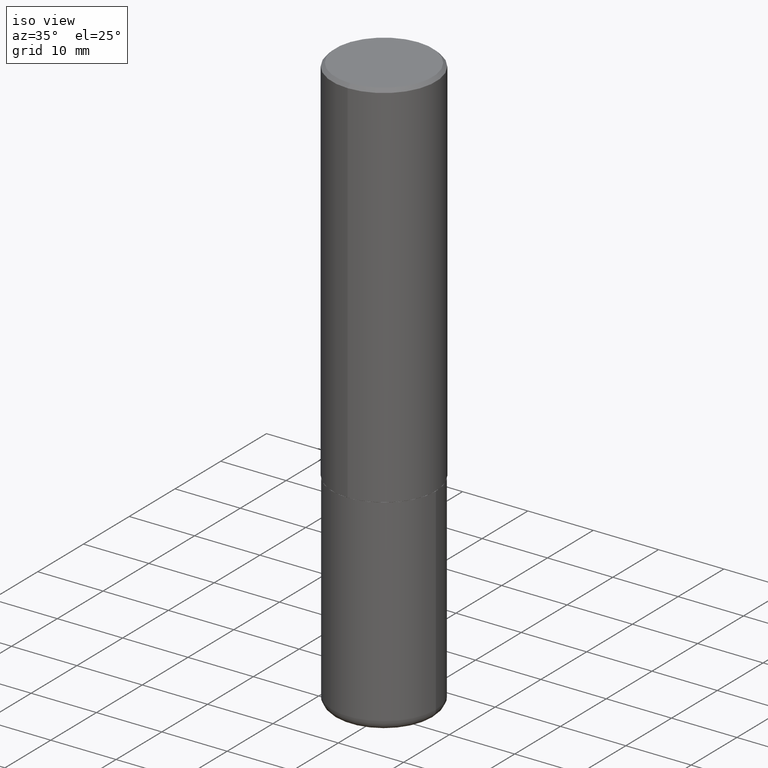
[diagram: clean part render]
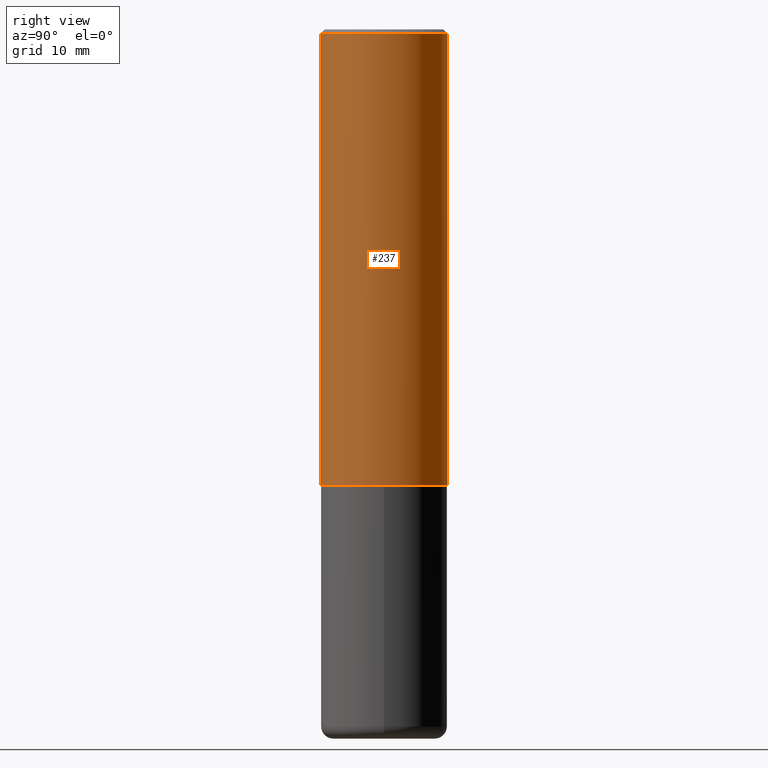
[diagram: tour spotlight — one face highlighted and labeled with its STEP entity id]
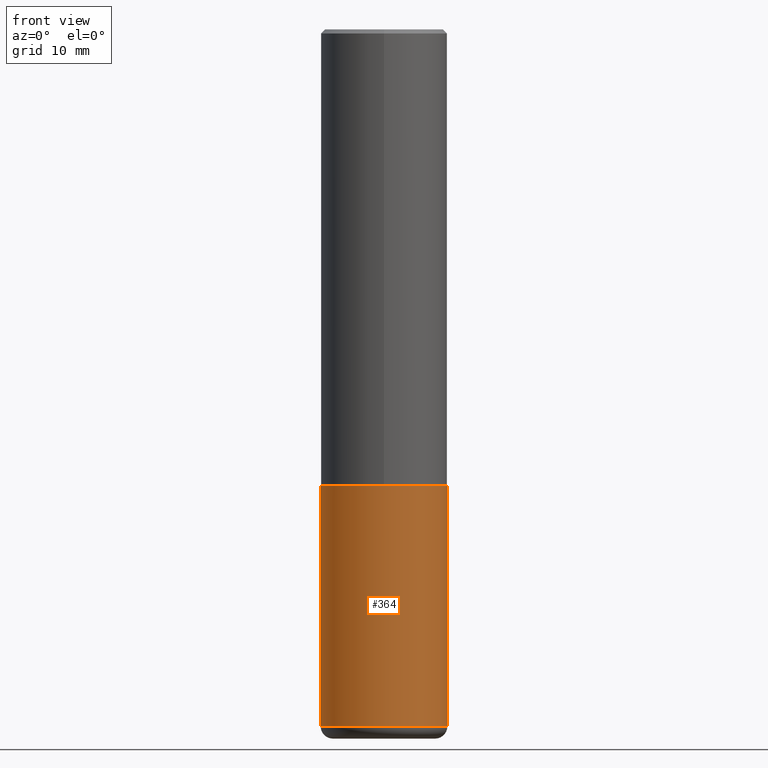
[diagram: tour spotlight — one face highlighted and labeled with its STEP entity id]
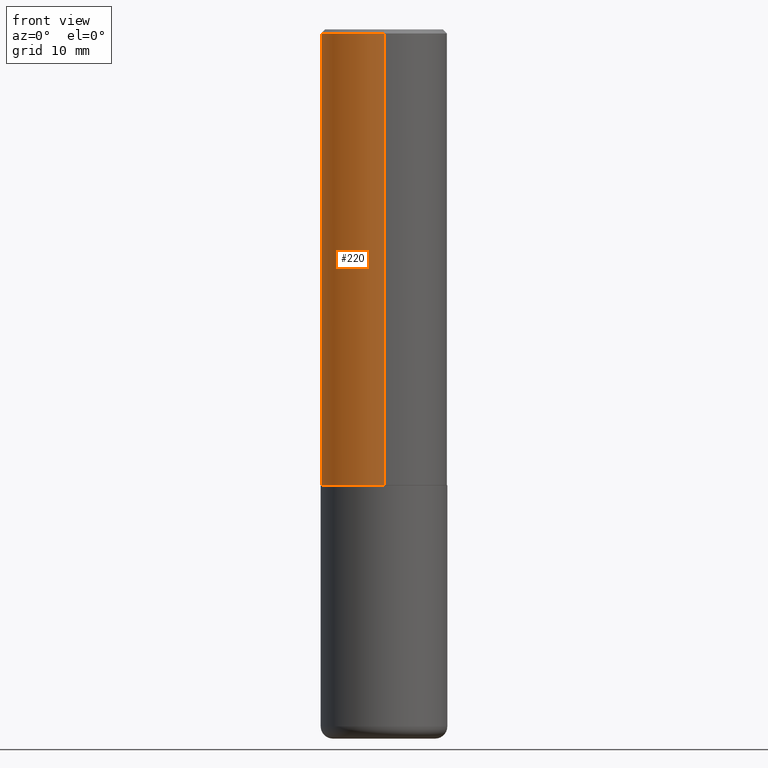
[diagram: tour spotlight — one face highlighted and labeled with its STEP entity id]
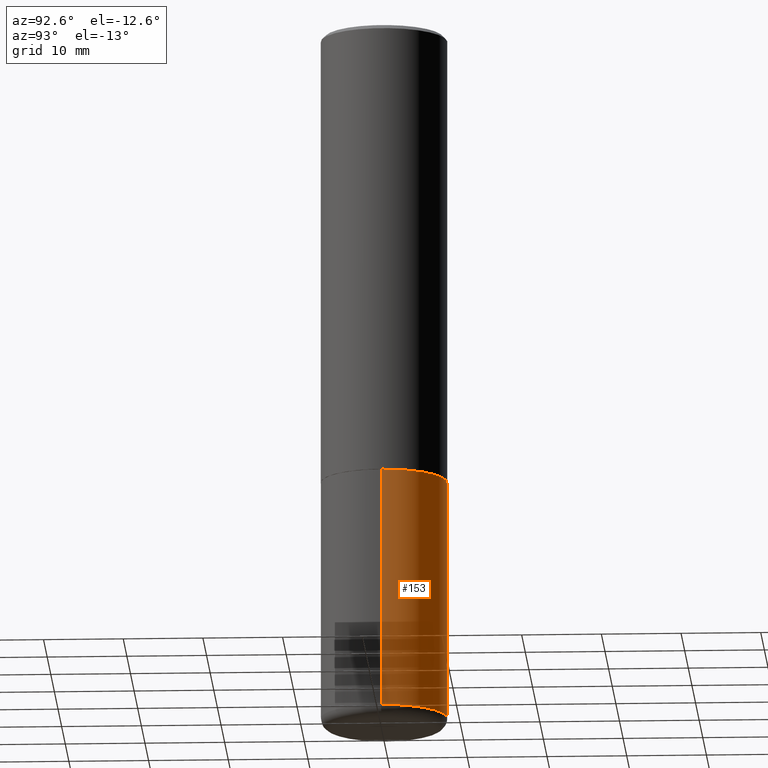
[diagram: tour spotlight — one face highlighted and labeled with its STEP entity id]
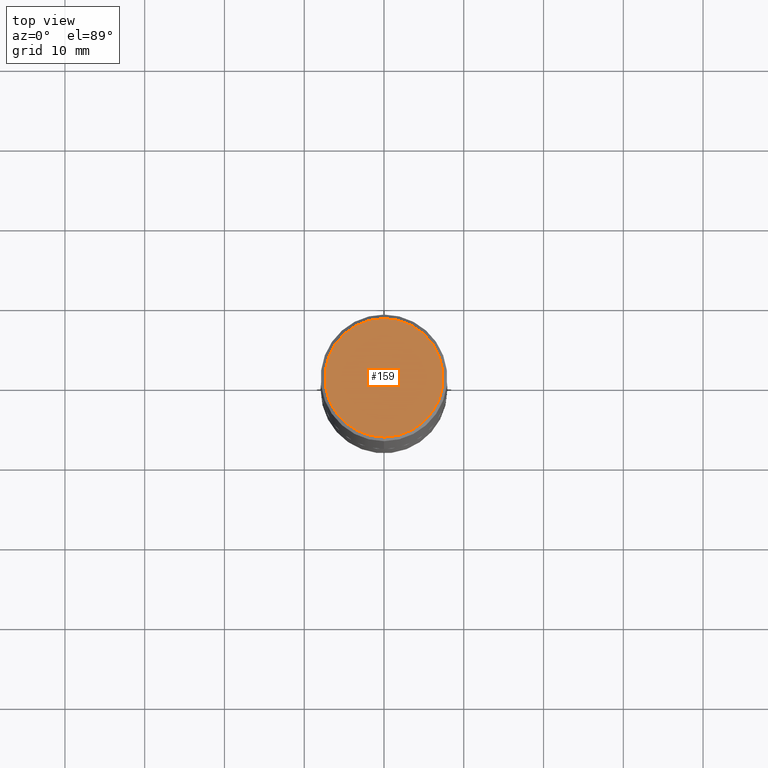
[diagram: tour spotlight — one face highlighted and labeled with its STEP entity id]
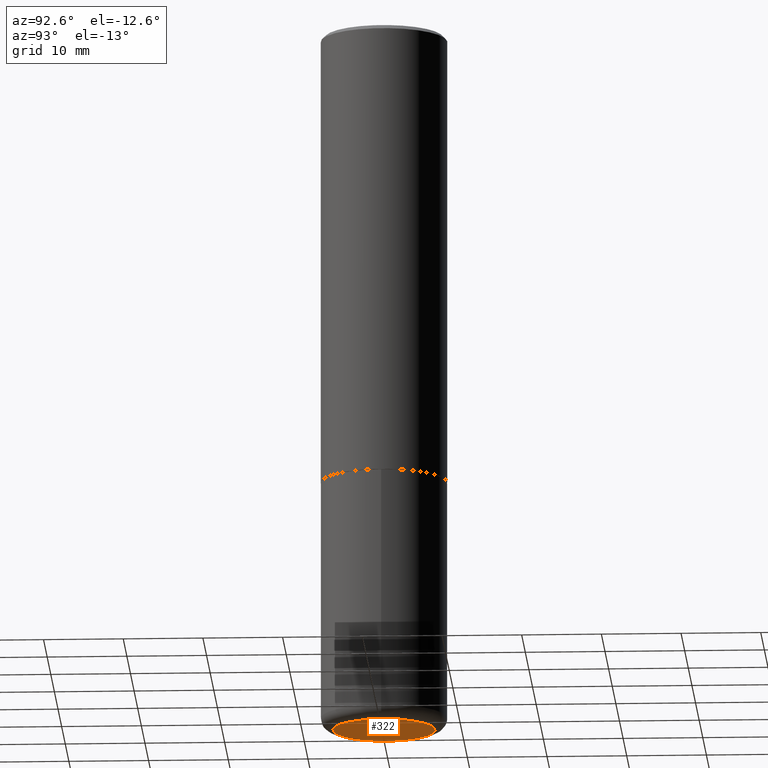
[diagram: tour spotlight — one face highlighted and labeled with its STEP entity id]
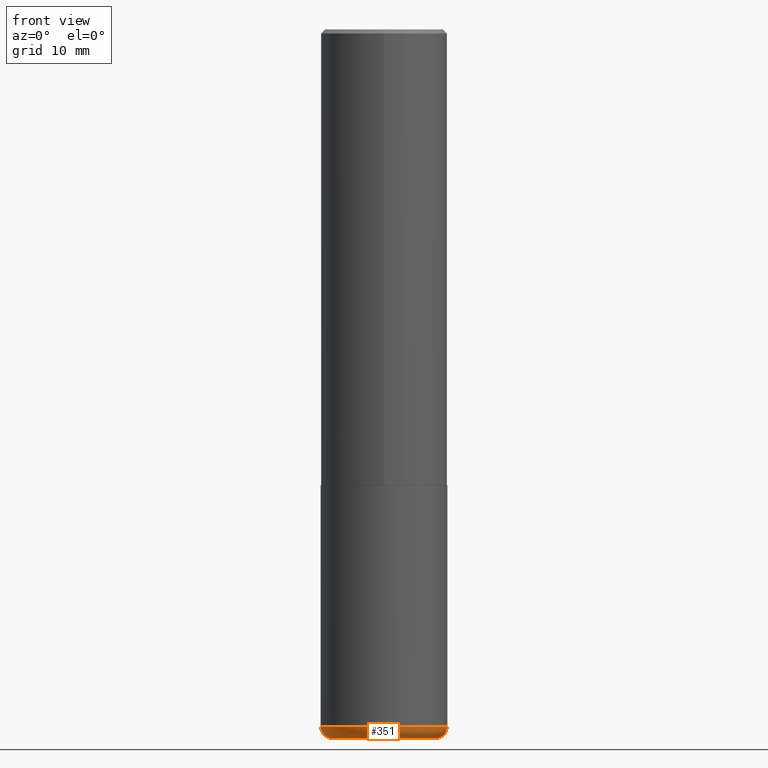
[diagram: tour spotlight — one face highlighted and labeled with its STEP entity id]
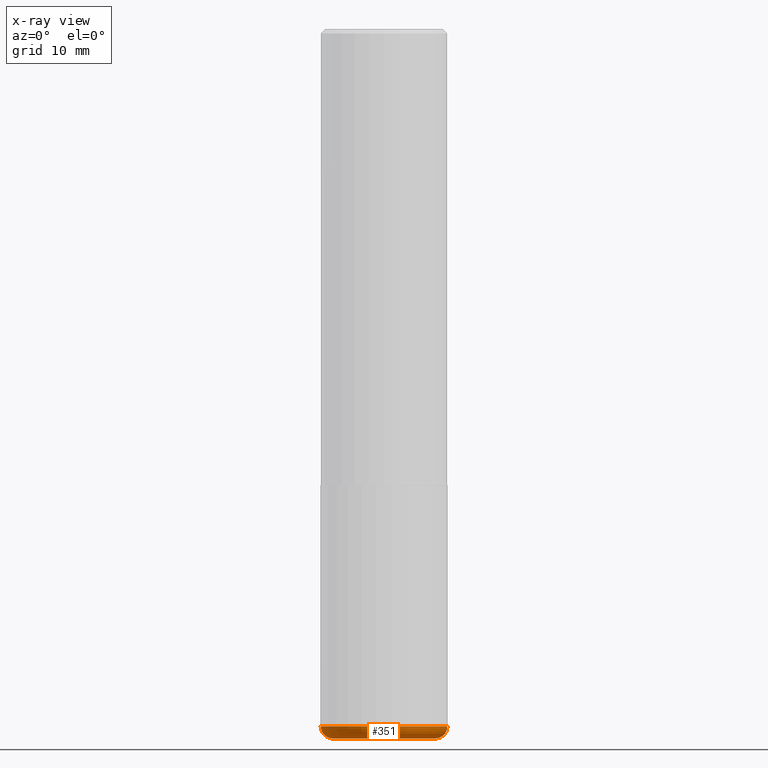
[diagram: x-ray of the same camera — body ghosted, this tour face saturated]
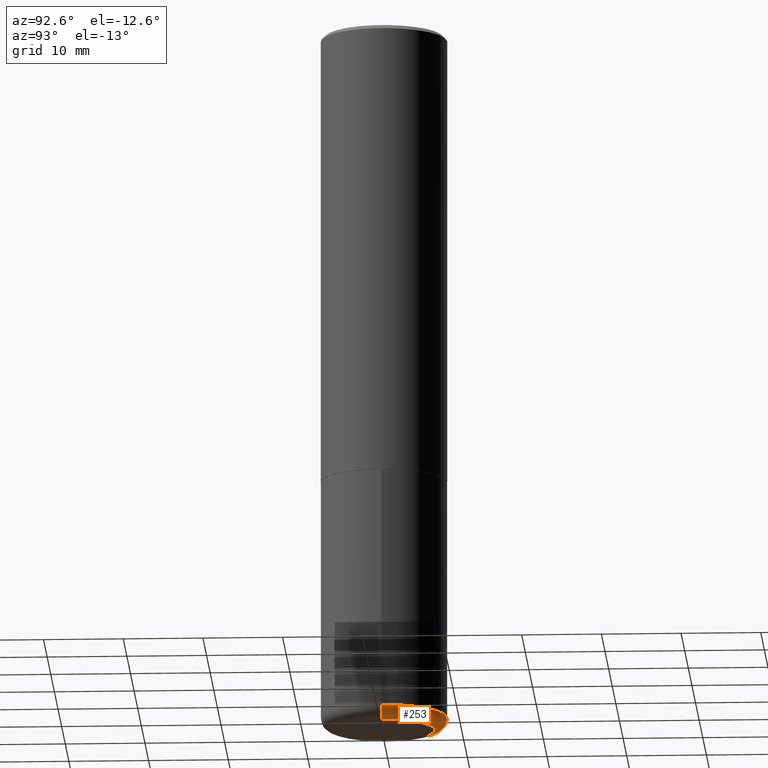
[diagram: tour spotlight — one face highlighted and labeled with its STEP entity id]
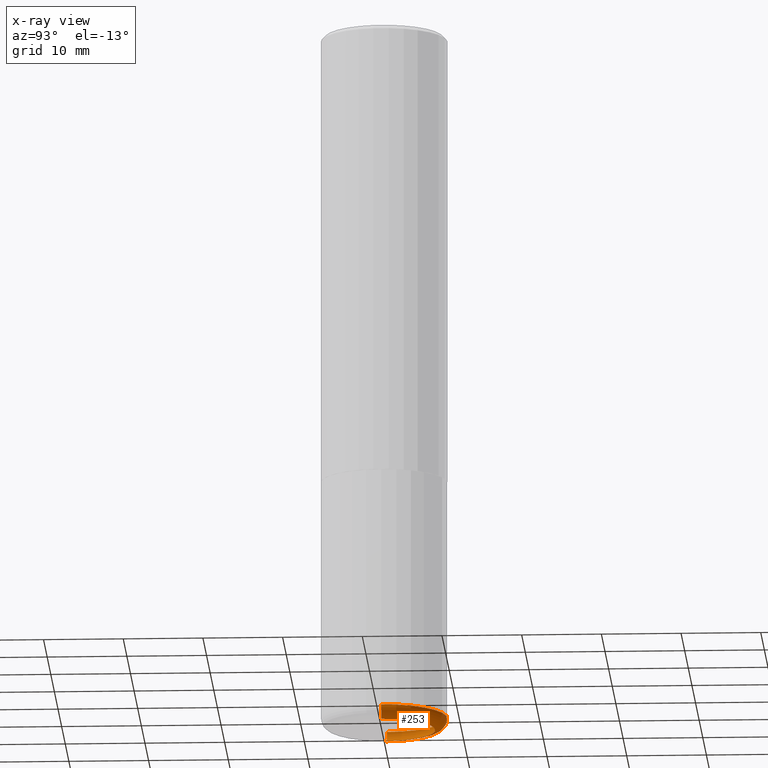
[diagram: x-ray of the same camera — body ghosted, this tour face saturated]
A machine part: a face-by-face anatomy tour. The part has 14 B-rep faces; the first image is the clean iso view, then the 8 largest visible faces are spotlighted one at a time (largest first), each with its STEP entity span.

Face 1 — right view, entity #237. In plain terms, the highlighted cylindrical surface (partial cylindrical patch) has radius 7.9375 mm, axis along (-0, 0, 1).
Definition (entity closure, byte-faithful):
#4 = DIRECTION ( 'NONE',  ( -6.982962677686265133E-15, -1.000000000000000000, 3.496765431890258103E-15 ) ) ;
#10 = CARTESIAN_POINT ( 'NONE',  ( 4.888310870337248995E-31, -6.986724321782500903E-17, -0.02000000000000006981 ) ) ;
#28 = CARTESIAN_POINT ( 'NONE',  ( 5.496905573694216767E-29, -7.856571499844395127E-15, -2.248999999999999666 ) ) ;
#36 = CARTESIAN_POINT ( 'NONE',  ( 2.220446049250341480E-15, 0.3124999999999924505, -2.249000000000000998 ) ) ;
#44 = ORIENTED_EDGE ( 'NONE', *, *, #326, .T. ) ;
#54 = VECTOR ( 'NONE', #337, 39.37007874015748143 ) ;
#64 = VECTOR ( 'NONE', #100, 39.37007874015748143 ) ;
#70 = DIRECTION ( 'NONE',  ( -6.982962677686266711E-15, -1.000000000000000000, 3.493362160891238520E-15 ) ) ;
#77 = EDGE_LOOP ( 'NONE', ( #44, #231, #257, #86 ) ) ;
#86 = ORIENTED_EDGE ( 'NONE', *, *, #308, .F. ) ;
#99 = FACE_OUTER_BOUND ( 'NONE', #77, .T. ) ;
#100 = DIRECTION ( 'NONE',  ( -2.444155435168616212E-29, 3.493362160891238126E-15, 1.000000000000000000 ) ) ;
#113 = VERTEX_POINT ( 'NONE', #401 ) ;
#127 = EDGE_CURVE ( 'NONE', #293, #210, #241, .T. ) ;
#137 = DIRECTION ( 'NONE',  ( -2.444155435168616212E-29, 3.493362160891238520E-15, 1.000000000000000000 ) ) ;
#191 = CYLINDRICAL_SURFACE ( 'NONE', #323, 0.3125000000000000555 ) ;
#192 = CIRCLE ( 'NONE', #305, 0.3124999999999998890 ) ;
#210 = VERTEX_POINT ( 'NONE', #287 ) ;
#211 = CARTESIAN_POINT ( 'NONE',  ( 2.220446049250313081E-15, 0.3125000000000000555, -1.091675675278512284E-15 ) ) ;
#231 = ORIENTED_EDGE ( 'NONE', *, *, #127, .T. ) ;
#237 = ADVANCED_FACE ( 'NONE', ( #99 ), #191, .T. ) ;
#241 = LINE ( 'NONE', #211, #54 ) ;
#252 = CARTESIAN_POINT ( 'NONE',  ( 0.000000000000000000, 0.000000000000000000, 0.000000000000000000 ) ) ;
#257 = ORIENTED_EDGE ( 'NONE', *, *, #349, .F. ) ;
#258 = CARTESIAN_POINT ( 'NONE',  ( -2.143905624303602036E-15, -0.3124999999999999445, -0.01999999999999897693 ) ) ;
#287 = CARTESIAN_POINT ( 'NONE',  ( 2.182175836776957558E-15, 0.3124999999999998335, -0.02000000000000116268 ) ) ;
#289 = LINE ( 'NONE', #379, #64 ) ;
#290 = DIRECTION ( 'NONE',  ( -2.444155435168616212E-29, 3.493362160891238520E-15, 1.000000000000000000 ) ) ;
#293 = VERTEX_POINT ( 'NONE', #36 ) ;
#300 = VERTEX_POINT ( 'NONE', #258 ) ;
#305 = AXIS2_PLACEMENT_3D ( 'NONE', #10, #137, #4 ) ;
#308 = EDGE_CURVE ( 'NONE', #113, #300, #289, .T. ) ;
#316 = CIRCLE ( 'NONE', #372, 0.3125000000000002776 ) ;
#323 = AXIS2_PLACEMENT_3D ( 'NONE', #252, #290, #70 ) ;
#326 = EDGE_CURVE ( 'NONE', #113, #293, #316, .T. ) ;
#337 = DIRECTION ( 'NONE',  ( -2.444155435168616212E-29, 3.493362160891238126E-15, 1.000000000000000000 ) ) ;
#349 = EDGE_CURVE ( 'NONE', #300, #210, #192, .T. ) ;
#362 = DIRECTION ( 'NONE',  ( -6.982962677686265922E-15, -1.000000000000000000, 3.496765431890253764E-15 ) ) ;
#366 = DIRECTION ( 'NONE',  ( -2.444155435168616212E-29, 3.493362160891238520E-15, 1.000000000000000000 ) ) ;
#372 = AXIS2_PLACEMENT_3D ( 'NONE', #28, #366, #362 ) ;
#379 = CARTESIAN_POINT ( 'NONE',  ( -2.182175836776958741E-15, -0.3125000000000000555, 1.091675675278512284E-15 ) ) ;
#401 = CARTESIAN_POINT ( 'NONE',  ( -2.182175836776905099E-15, -0.3125000000000081601, -2.248999999999998778 ) ) ;

Face 2 — front view, entity #364. In plain terms, the highlighted cylindrical surface (partial cylindrical patch) has radius 7.9375 mm, axis along (-0, 0, 1).
Definition (entity closure, byte-faithful):
#24 = LINE ( 'NONE', #184, #338 ) ;
#39 = CARTESIAN_POINT ( 'NONE',  ( -0.3125000000000000000, -7.712818359758435078E-15, -2.249999999999999556 ) ) ;
#53 = DIRECTION ( 'NONE',  ( -2.445468806185136877E-29, 3.491481338843145188E-15, 1.000000000000000000 ) ) ;
#60 = CARTESIAN_POINT ( 'NONE',  ( 5.502304813916556222E-29, -7.855833012397076871E-15, -2.249999999999999556 ) ) ;
#61 = DIRECTION ( 'NONE',  ( 1.000000000000000000, -6.982962677686269077E-15, 0.000000000000000000 ) ) ;
#62 = EDGE_CURVE ( 'NONE', #117, #145, #187, .T. ) ;
#68 = LINE ( 'NONE', #130, #263 ) ;
#107 = ORIENTED_EDGE ( 'NONE', *, *, #131, .T. ) ;
#114 = AXIS2_PLACEMENT_3D ( 'NONE', #60, #415, #156 ) ;
#117 = VERTEX_POINT ( 'NONE', #402 ) ;
#130 = CARTESIAN_POINT ( 'NONE',  ( -0.3125000000000000000, 2.220446049250313081E-15, -1.537167215704658232E-29 ) ) ;
#131 = EDGE_CURVE ( 'NONE', #145, #268, #24, .T. ) ;
#145 = VERTEX_POINT ( 'NONE', #310 ) ;
#156 = DIRECTION ( 'NONE',  ( 1.000000000000000000, -6.982962677686269077E-15, 0.000000000000000000 ) ) ;
#175 = CYLINDRICAL_SURFACE ( 'NONE', #217, 0.3125000000000000000 ) ;
#184 = CARTESIAN_POINT ( 'NONE',  ( 0.3125000000000000000, -2.182175836776958347E-15, 1.523805242436230075E-29 ) ) ;
#187 = CIRCLE ( 'NONE', #199, 0.3125000000000000000 ) ;
#196 = EDGE_CURVE ( 'NONE', #384, #268, #360, .T. ) ;
#199 = AXIS2_PLACEMENT_3D ( 'NONE', #390, #246, #61 ) ;
#206 = ORIENTED_EDGE ( 'NONE', *, *, #222, .F. ) ;
#217 = AXIS2_PLACEMENT_3D ( 'NONE', #261, #264, #292 ) ;
#222 = EDGE_CURVE ( 'NONE', #117, #384, #68, .T. ) ;
#246 = DIRECTION ( 'NONE',  ( -2.445468806185136597E-29, 3.491481338843145583E-15, 1.000000000000000000 ) ) ;
#261 = CARTESIAN_POINT ( 'NONE',  ( 0.000000000000000000, 0.000000000000000000, 0.000000000000000000 ) ) ;
#263 = VECTOR ( 'NONE', #376, 39.37007874015748143 ) ;
#264 = DIRECTION ( 'NONE',  ( -2.445468806185136597E-29, 3.491481338843145583E-15, 1.000000000000000000 ) ) ;
#268 = VERTEX_POINT ( 'NONE', #317 ) ;
#292 = DIRECTION ( 'NONE',  ( 1.000000000000000000, -6.982962677686266711E-15, 4.876176775795936353E-29 ) ) ;
#294 = FACE_OUTER_BOUND ( 'NONE', #365, .T. ) ;
#310 = CARTESIAN_POINT ( 'NONE',  ( 0.3125000000000000000, -1.419287164239737937E-14, -3.439999999999999947 ) ) ;
#317 = CARTESIAN_POINT ( 'NONE',  ( 0.3125000000000000000, -1.003800884917403522E-14, -2.249999999999999556 ) ) ;
#338 = VECTOR ( 'NONE', #53, 39.37007874015748143 ) ;
#360 = CIRCLE ( 'NONE', #114, 0.3125000000000000000 ) ;
#363 = ORIENTED_EDGE ( 'NONE', *, *, #196, .F. ) ;
#364 = ADVANCED_FACE ( 'NONE', ( #294 ), #175, .T. ) ;
#365 = EDGE_LOOP ( 'NONE', ( #206, #413, #107, #363 ) ) ;
#376 = DIRECTION ( 'NONE',  ( -2.445468806185136877E-29, 3.491481338843145188E-15, 1.000000000000000000 ) ) ;
#384 = VERTEX_POINT ( 'NONE', #39 ) ;
#390 = CARTESIAN_POINT ( 'NONE',  ( 8.412412693276869938E-29, -1.201069580562042103E-14, -3.439999999999999947 ) ) ;
#402 = CARTESIAN_POINT ( 'NONE',  ( -0.3125000000000000000, -9.790249756370107944E-15, -3.439999999999999947 ) ) ;
#413 = ORIENTED_EDGE ( 'NONE', *, *, #62, .T. ) ;
#415 = DIRECTION ( 'NONE',  ( -2.445468806185136597E-29, 3.491481338843145583E-15, 1.000000000000000000 ) ) ;

Face 3 — front view, entity #220. In plain terms, the highlighted cylindrical surface (partial cylindrical patch) has radius 7.9375 mm, axis along (-0, 0, 1).
Definition (entity closure, byte-faithful):
#7 = ORIENTED_EDGE ( 'NONE', *, *, #127, .F. ) ;
#36 = CARTESIAN_POINT ( 'NONE',  ( 2.220446049250341480E-15, 0.3124999999999924505, -2.249000000000000998 ) ) ;
#54 = VECTOR ( 'NONE', #337, 39.37007874015748143 ) ;
#64 = VECTOR ( 'NONE', #100, 39.37007874015748143 ) ;
#73 = DIRECTION ( 'NONE',  ( -6.982962677686265133E-15, -1.000000000000000000, 3.496765431890258103E-15 ) ) ;
#79 = EDGE_CURVE ( 'NONE', #293, #113, #400, .T. ) ;
#88 = CARTESIAN_POINT ( 'NONE',  ( 5.496905573694216767E-29, -7.856571499844395127E-15, -2.248999999999999666 ) ) ;
#100 = DIRECTION ( 'NONE',  ( -2.444155435168616212E-29, 3.493362160891238126E-15, 1.000000000000000000 ) ) ;
#113 = VERTEX_POINT ( 'NONE', #401 ) ;
#115 = ORIENTED_EDGE ( 'NONE', *, *, #417, .F. ) ;
#126 = CARTESIAN_POINT ( 'NONE',  ( 0.000000000000000000, 0.000000000000000000, 0.000000000000000000 ) ) ;
#127 = EDGE_CURVE ( 'NONE', #293, #210, #241, .T. ) ;
#141 = EDGE_LOOP ( 'NONE', ( #7, #367, #176, #115 ) ) ;
#164 = FACE_OUTER_BOUND ( 'NONE', #141, .T. ) ;
#176 = ORIENTED_EDGE ( 'NONE', *, *, #308, .T. ) ;
#200 = DIRECTION ( 'NONE',  ( -2.444155435168616212E-29, 3.493362160891238520E-15, 1.000000000000000000 ) ) ;
#210 = VERTEX_POINT ( 'NONE', #287 ) ;
#211 = CARTESIAN_POINT ( 'NONE',  ( 2.220446049250313081E-15, 0.3125000000000000555, -1.091675675278512284E-15 ) ) ;
#220 = ADVANCED_FACE ( 'NONE', ( #164 ), #254, .T. ) ;
#232 = CIRCLE ( 'NONE', #250, 0.3124999999999998890 ) ;
#233 = AXIS2_PLACEMENT_3D ( 'NONE', #126, #380, #352 ) ;
#241 = LINE ( 'NONE', #211, #54 ) ;
#247 = DIRECTION ( 'NONE',  ( -2.444155435168616212E-29, 3.493362160891238520E-15, 1.000000000000000000 ) ) ;
#250 = AXIS2_PLACEMENT_3D ( 'NONE', #358, #200, #73 ) ;
#254 = CYLINDRICAL_SURFACE ( 'NONE', #233, 0.3125000000000000555 ) ;
#258 = CARTESIAN_POINT ( 'NONE',  ( -2.143905624303602036E-15, -0.3124999999999999445, -0.01999999999999897693 ) ) ;
#272 = DIRECTION ( 'NONE',  ( -6.982962677686265922E-15, -1.000000000000000000, 3.496765431890253764E-15 ) ) ;
#286 = AXIS2_PLACEMENT_3D ( 'NONE', #88, #247, #272 ) ;
#287 = CARTESIAN_POINT ( 'NONE',  ( 2.182175836776957558E-15, 0.3124999999999998335, -0.02000000000000116268 ) ) ;
#289 = LINE ( 'NONE', #379, #64 ) ;
#293 = VERTEX_POINT ( 'NONE', #36 ) ;
#300 = VERTEX_POINT ( 'NONE', #258 ) ;
#308 = EDGE_CURVE ( 'NONE', #113, #300, #289, .T. ) ;
#337 = DIRECTION ( 'NONE',  ( -2.444155435168616212E-29, 3.493362160891238126E-15, 1.000000000000000000 ) ) ;
#352 = DIRECTION ( 'NONE',  ( -6.982962677686266711E-15, -1.000000000000000000, 3.493362160891238520E-15 ) ) ;
#358 = CARTESIAN_POINT ( 'NONE',  ( 4.888310870337248995E-31, -6.986724321782500903E-17, -0.02000000000000006981 ) ) ;
#367 = ORIENTED_EDGE ( 'NONE', *, *, #79, .T. ) ;
#379 = CARTESIAN_POINT ( 'NONE',  ( -2.182175836776958741E-15, -0.3125000000000000555, 1.091675675278512284E-15 ) ) ;
#380 = DIRECTION ( 'NONE',  ( -2.444155435168616212E-29, 3.493362160891238520E-15, 1.000000000000000000 ) ) ;
#400 = CIRCLE ( 'NONE', #286, 0.3125000000000002776 ) ;
#401 = CARTESIAN_POINT ( 'NONE',  ( -2.182175836776905099E-15, -0.3125000000000081601, -2.248999999999998778 ) ) ;
#417 = EDGE_CURVE ( 'NONE', #210, #300, #232, .T. ) ;

Face 4 — auxiliary view, entity #153. In plain terms, the highlighted cylindrical surface (partial cylindrical patch) has radius 7.9375 mm, axis along (-0, 0, 1).
Definition (entity closure, byte-faithful):
#24 = LINE ( 'NONE', #184, #338 ) ;
#27 = CYLINDRICAL_SURFACE ( 'NONE', #251, 0.3125000000000000000 ) ;
#31 = DIRECTION ( 'NONE',  ( 1.000000000000000000, -6.982962677686269077E-15, 0.000000000000000000 ) ) ;
#33 = CARTESIAN_POINT ( 'NONE',  ( 5.502304813916556222E-29, -7.855833012397076871E-15, -2.249999999999999556 ) ) ;
#34 = AXIS2_PLACEMENT_3D ( 'NONE', #33, #166, #383 ) ;
#39 = CARTESIAN_POINT ( 'NONE',  ( -0.3125000000000000000, -7.712818359758435078E-15, -2.249999999999999556 ) ) ;
#53 = DIRECTION ( 'NONE',  ( -2.445468806185136877E-29, 3.491481338843145188E-15, 1.000000000000000000 ) ) ;
#68 = LINE ( 'NONE', #130, #263 ) ;
#72 = CIRCLE ( 'NONE', #34, 0.3125000000000000000 ) ;
#117 = VERTEX_POINT ( 'NONE', #402 ) ;
#130 = CARTESIAN_POINT ( 'NONE',  ( -0.3125000000000000000, 2.220446049250313081E-15, -1.537167215704658232E-29 ) ) ;
#131 = EDGE_CURVE ( 'NONE', #145, #268, #24, .T. ) ;
#132 = DIRECTION ( 'NONE',  ( -2.445468806185136597E-29, 3.491481338843145583E-15, 1.000000000000000000 ) ) ;
#140 = ORIENTED_EDGE ( 'NONE', *, *, #131, .F. ) ;
#145 = VERTEX_POINT ( 'NONE', #310 ) ;
#153 = ADVANCED_FACE ( 'NONE', ( #307 ), #27, .T. ) ;
#155 = DIRECTION ( 'NONE',  ( 1.000000000000000000, -6.982962677686266711E-15, 4.876176775795936353E-29 ) ) ;
#160 = AXIS2_PLACEMENT_3D ( 'NONE', #248, #132, #31 ) ;
#165 = ORIENTED_EDGE ( 'NONE', *, *, #288, .F. ) ;
#166 = DIRECTION ( 'NONE',  ( -2.445468806185136597E-29, 3.491481338843145583E-15, 1.000000000000000000 ) ) ;
#174 = ORIENTED_EDGE ( 'NONE', *, *, #222, .T. ) ;
#184 = CARTESIAN_POINT ( 'NONE',  ( 0.3125000000000000000, -2.182175836776958347E-15, 1.523805242436230075E-29 ) ) ;
#198 = EDGE_CURVE ( 'NONE', #145, #117, #201, .T. ) ;
#201 = CIRCLE ( 'NONE', #160, 0.3125000000000000000 ) ;
#222 = EDGE_CURVE ( 'NONE', #117, #384, #68, .T. ) ;
#242 = CARTESIAN_POINT ( 'NONE',  ( 0.000000000000000000, 0.000000000000000000, 0.000000000000000000 ) ) ;
#248 = CARTESIAN_POINT ( 'NONE',  ( 8.412412693276869938E-29, -1.201069580562042103E-14, -3.439999999999999947 ) ) ;
#251 = AXIS2_PLACEMENT_3D ( 'NONE', #242, #277, #155 ) ;
#263 = VECTOR ( 'NONE', #376, 39.37007874015748143 ) ;
#268 = VERTEX_POINT ( 'NONE', #317 ) ;
#277 = DIRECTION ( 'NONE',  ( -2.445468806185136597E-29, 3.491481338843145583E-15, 1.000000000000000000 ) ) ;
#288 = EDGE_CURVE ( 'NONE', #268, #384, #72, .T. ) ;
#307 = FACE_OUTER_BOUND ( 'NONE', #416, .T. ) ;
#310 = CARTESIAN_POINT ( 'NONE',  ( 0.3125000000000000000, -1.419287164239737937E-14, -3.439999999999999947 ) ) ;
#317 = CARTESIAN_POINT ( 'NONE',  ( 0.3125000000000000000, -1.003800884917403522E-14, -2.249999999999999556 ) ) ;
#329 = ORIENTED_EDGE ( 'NONE', *, *, #198, .T. ) ;
#338 = VECTOR ( 'NONE', #53, 39.37007874015748143 ) ;
#376 = DIRECTION ( 'NONE',  ( -2.445468806185136877E-29, 3.491481338843145188E-15, 1.000000000000000000 ) ) ;
#383 = DIRECTION ( 'NONE',  ( 1.000000000000000000, -6.982962677686269077E-15, 0.000000000000000000 ) ) ;
#384 = VERTEX_POINT ( 'NONE', #39 ) ;
#402 = CARTESIAN_POINT ( 'NONE',  ( -0.3125000000000000000, -9.790249756370107944E-15, -3.439999999999999947 ) ) ;
#416 = EDGE_LOOP ( 'NONE', ( #329, #174, #165, #140 ) ) ;

Face 5 — top view, entity #159. In plain terms, the highlighted planar face has unit normal (0, -0, -1).
Definition (entity closure, byte-faithful):
#25 = EDGE_CURVE ( 'NONE', #133, #333, #57, .T. ) ;
#57 = CIRCLE ( 'NONE', #142, 0.2924999999999997047 ) ;
#59 = DIRECTION ( 'NONE',  ( 6.982962677686265922E-15, 1.000000000000000000, -3.493362160891238126E-15 ) ) ;
#74 = CARTESIAN_POINT ( 'NONE',  ( -3.247647768543791356E-45, 4.641771003304080589E-31, 1.328740276421799924E-16 ) ) ;
#75 = AXIS2_PLACEMENT_3D ( 'NONE', #172, #146, #168 ) ;
#90 = CARTESIAN_POINT ( 'NONE',  ( 2.042516583223230567E-15, 0.2924999999999997047, -9.553714182395964653E-16 ) ) ;
#102 = EDGE_LOOP ( 'NONE', ( #355, #236 ) ) ;
#125 = PLANE ( 'NONE',  #218 ) ;
#133 = VERTEX_POINT ( 'NONE', #186 ) ;
#142 = AXIS2_PLACEMENT_3D ( 'NONE', #74, #202, #262 ) ;
#146 = DIRECTION ( 'NONE',  ( -2.444155435168616212E-29, 3.493362160891238520E-15, 1.000000000000000000 ) ) ;
#159 = ADVANCED_FACE ( 'NONE', ( #371 ), #125, .F. ) ;
#168 = DIRECTION ( 'NONE',  ( -6.982962677686265133E-15, -1.000000000000000000, 3.493362160891238126E-15 ) ) ;
#172 = CARTESIAN_POINT ( 'NONE',  ( -3.247647768543791356E-45, 4.641771003304080589E-31, 1.328740276421799924E-16 ) ) ;
#186 = CARTESIAN_POINT ( 'NONE',  ( -2.075300644325886310E-15, -0.2924999999999997047, 1.154682459702866479E-15 ) ) ;
#202 = DIRECTION ( 'NONE',  ( -2.444155435168616212E-29, 3.493362160891238520E-15, 1.000000000000000000 ) ) ;
#212 = DIRECTION ( 'NONE',  ( 2.444155435168616212E-29, -3.493362160891238126E-15, -1.000000000000000000 ) ) ;
#218 = AXIS2_PLACEMENT_3D ( 'NONE', #90, #212, #59 ) ;
#235 = CARTESIAN_POINT ( 'NONE',  ( 2.112346210000094260E-15, 0.2924999999999997047, -8.889344044185063951E-16 ) ) ;
#236 = ORIENTED_EDGE ( 'NONE', *, *, #25, .T. ) ;
#262 = DIRECTION ( 'NONE',  ( -6.982962677686265133E-15, -1.000000000000000000, 3.493362160891238126E-15 ) ) ;
#265 = CIRCLE ( 'NONE', #75, 0.2924999999999997047 ) ;
#330 = EDGE_CURVE ( 'NONE', #333, #133, #265, .T. ) ;
#333 = VERTEX_POINT ( 'NONE', #235 ) ;
#355 = ORIENTED_EDGE ( 'NONE', *, *, #330, .T. ) ;
#371 = FACE_OUTER_BOUND ( 'NONE', #102, .T. ) ;

Face 6 — auxiliary view, entity #322. In plain terms, the highlighted planar face has unit normal (0, -0, -1).
Definition (entity closure, byte-faithful):
#5 = ORIENTED_EDGE ( 'NONE', *, *, #203, .F. ) ;
#8 = EDGE_CURVE ( 'NONE', #197, #234, #377, .T. ) ;
#37 = EDGE_LOOP ( 'NONE', ( #5, #381 ) ) ;
#38 = CARTESIAN_POINT ( 'NONE',  ( 8.559140821647976968E-29, -1.222018468595100934E-14, -3.500000000000000000 ) ) ;
#56 = AXIS2_PLACEMENT_3D ( 'NONE', #270, #398, #139 ) ;
#101 = DIRECTION ( 'NONE',  ( -2.445468806185136597E-29, 3.491481338843145583E-15, 1.000000000000000000 ) ) ;
#106 = DIRECTION ( 'NONE',  ( -1.000000000000000000, 6.982962677686265922E-15, -4.876176775795935793E-29 ) ) ;
#111 = CIRCLE ( 'NONE', #122, 0.2525000000000000022 ) ;
#122 = AXIS2_PLACEMENT_3D ( 'NONE', #135, #101, #412 ) ;
#135 = CARTESIAN_POINT ( 'NONE',  ( 8.559140821647976968E-29, -1.222018468595100934E-14, -3.500000000000000000 ) ) ;
#139 = DIRECTION ( 'NONE',  ( 1.000000000000000000, -6.982962677686269866E-15, 0.000000000000000000 ) ) ;
#161 = CARTESIAN_POINT ( 'NONE',  ( 0.2525000000000000022, -1.398338276206679106E-14, -3.500000000000000000 ) ) ;
#188 = FACE_OUTER_BOUND ( 'NONE', #37, .T. ) ;
#197 = VERTEX_POINT ( 'NONE', #284 ) ;
#203 = EDGE_CURVE ( 'NONE', #234, #197, #111, .T. ) ;
#234 = VERTEX_POINT ( 'NONE', #161 ) ;
#270 = CARTESIAN_POINT ( 'NONE',  ( 8.559140821647976968E-29, -1.222018468595100934E-14, -3.500000000000000000 ) ) ;
#284 = CARTESIAN_POINT ( 'NONE',  ( -0.2525000000000000022, -1.010815701726343156E-14, -3.500000000000000000 ) ) ;
#311 = PLANE ( 'NONE',  #411 ) ;
#322 = ADVANCED_FACE ( 'NONE', ( #188 ), #311, .T. ) ;
#377 = CIRCLE ( 'NONE', #56, 0.2525000000000000022 ) ;
#381 = ORIENTED_EDGE ( 'NONE', *, *, #8, .F. ) ;
#385 = DIRECTION ( 'NONE',  ( 2.438088387897960049E-29, -3.491481338843145188E-15, -1.000000000000000000 ) ) ;
#398 = DIRECTION ( 'NONE',  ( -2.445468806185136597E-29, 3.491481338843145583E-15, 1.000000000000000000 ) ) ;
#411 = AXIS2_PLACEMENT_3D ( 'NONE', #38, #385, #106 ) ;
#412 = DIRECTION ( 'NONE',  ( 1.000000000000000000, -6.982962677686269866E-15, 0.000000000000000000 ) ) ;

Face 7 — front view, entity #351. An x-ray twin of the same camera follows (body ghosted, this face saturated) — the face is partly hidden behind the body. In plain terms, the highlighted toroidal blend (fillet) surface has major radius 6.4135 mm and minor (blend) radius 1.524 mm.
Definition (entity closure, byte-faithful):
#3 = AXIS2_PLACEMENT_3D ( 'NONE', #341, #94, #404 ) ;
#8 = EDGE_CURVE ( 'NONE', #197, #234, #377, .T. ) ;
#22 = EDGE_CURVE ( 'NONE', #197, #117, #361, .T. ) ;
#56 = AXIS2_PLACEMENT_3D ( 'NONE', #270, #398, #139 ) ;
#61 = DIRECTION ( 'NONE',  ( 1.000000000000000000, -6.982962677686269077E-15, 0.000000000000000000 ) ) ;
#62 = EDGE_CURVE ( 'NONE', #117, #145, #187, .T. ) ;
#83 = EDGE_CURVE ( 'NONE', #234, #145, #182, .T. ) ;
#94 = DIRECTION ( 'NONE',  ( -6.982962677686266711E-15, -1.000000000000000000, 3.491481338843145583E-15 ) ) ;
#109 = ORIENTED_EDGE ( 'NONE', *, *, #62, .F. ) ;
#117 = VERTEX_POINT ( 'NONE', #402 ) ;
#120 = CARTESIAN_POINT ( 'NONE',  ( -0.2525000000000000022, -1.021657539782616686E-14, -3.439999999999999947 ) ) ;
#129 = AXIS2_PLACEMENT_3D ( 'NONE', #387, #205, #267 ) ;
#139 = DIRECTION ( 'NONE',  ( 1.000000000000000000, -6.982962677686269866E-15, 0.000000000000000000 ) ) ;
#145 = VERTEX_POINT ( 'NONE', #310 ) ;
#161 = CARTESIAN_POINT ( 'NONE',  ( 0.2525000000000000022, -1.398338276206679106E-14, -3.500000000000000000 ) ) ;
#182 = CIRCLE ( 'NONE', #3, 0.05999999999999994227 ) ;
#187 = CIRCLE ( 'NONE', #199, 0.3125000000000000000 ) ;
#197 = VERTEX_POINT ( 'NONE', #284 ) ;
#199 = AXIS2_PLACEMENT_3D ( 'NONE', #390, #246, #61 ) ;
#205 = DIRECTION ( 'NONE',  ( -2.445468806185136597E-29, 3.491481338843145583E-15, 1.000000000000000000 ) ) ;
#234 = VERTEX_POINT ( 'NONE', #161 ) ;
#246 = DIRECTION ( 'NONE',  ( -2.445468806185136597E-29, 3.491481338843145583E-15, 1.000000000000000000 ) ) ;
#259 = FACE_OUTER_BOUND ( 'NONE', #353, .T. ) ;
#260 = DIRECTION ( 'NONE',  ( 7.105427357601001859E-15, 1.000000000000000000, -3.491481338843145583E-15 ) ) ;
#267 = DIRECTION ( 'NONE',  ( 1.000000000000000000, -6.982962677686264344E-15, 4.883557194083112340E-29 ) ) ;
#270 = CARTESIAN_POINT ( 'NONE',  ( 8.559140821647976968E-29, -1.222018468595100934E-14, -3.500000000000000000 ) ) ;
#284 = CARTESIAN_POINT ( 'NONE',  ( -0.2525000000000000022, -1.010815701726343156E-14, -3.500000000000000000 ) ) ;
#310 = CARTESIAN_POINT ( 'NONE',  ( 0.3125000000000000000, -1.419287164239737937E-14, -3.439999999999999947 ) ) ;
#341 = CARTESIAN_POINT ( 'NONE',  ( 0.2525000000000000022, -1.377389388173620432E-14, -3.439999999999999947 ) ) ;
#347 = AXIS2_PLACEMENT_3D ( 'NONE', #120, #260, #388 ) ;
#351 = ADVANCED_FACE ( 'NONE', ( #259 ), #368, .T. ) ;
#353 = EDGE_LOOP ( 'NONE', ( #386, #357, #370, #109 ) ) ;
#357 = ORIENTED_EDGE ( 'NONE', *, *, #8, .T. ) ;
#361 = CIRCLE ( 'NONE', #347, 0.05999999999999994227 ) ;
#368 = TOROIDAL_SURFACE ( 'NONE', #129, 0.2525000000000000022, 0.05999999999999995615 ) ;
#370 = ORIENTED_EDGE ( 'NONE', *, *, #83, .T. ) ;
#377 = CIRCLE ( 'NONE', #56, 0.2525000000000000022 ) ;
#386 = ORIENTED_EDGE ( 'NONE', *, *, #22, .F. ) ;
#387 = CARTESIAN_POINT ( 'NONE',  ( 8.412412693276869938E-29, -1.201069580562042103E-14, -3.439999999999999947 ) ) ;
#388 = DIRECTION ( 'NONE',  ( -1.000000000000000000, 7.105427357600997914E-15, 0.000000000000000000 ) ) ;
#390 = CARTESIAN_POINT ( 'NONE',  ( 8.412412693276869938E-29, -1.201069580562042103E-14, -3.439999999999999947 ) ) ;
#398 = DIRECTION ( 'NONE',  ( -2.445468806185136597E-29, 3.491481338843145583E-15, 1.000000000000000000 ) ) ;
#402 = CARTESIAN_POINT ( 'NONE',  ( -0.3125000000000000000, -9.790249756370107944E-15, -3.439999999999999947 ) ) ;
#404 = DIRECTION ( 'NONE',  ( 1.000000000000000000, -6.982962677686274599E-15, 0.000000000000000000 ) ) ;

Face 8 — auxiliary view, entity #253. An x-ray twin of the same camera follows (body ghosted, this face saturated) — the face is partly hidden behind the body. In plain terms, the highlighted toroidal blend (fillet) surface has major radius 6.4135 mm and minor (blend) radius 1.524 mm.
Definition (entity closure, byte-faithful):
#3 = AXIS2_PLACEMENT_3D ( 'NONE', #341, #94, #404 ) ;
#14 = ORIENTED_EDGE ( 'NONE', *, *, #198, .F. ) ;
#22 = EDGE_CURVE ( 'NONE', #197, #117, #361, .T. ) ;
#31 = DIRECTION ( 'NONE',  ( 1.000000000000000000, -6.982962677686269077E-15, 0.000000000000000000 ) ) ;
#83 = EDGE_CURVE ( 'NONE', #234, #145, #182, .T. ) ;
#94 = DIRECTION ( 'NONE',  ( -6.982962677686266711E-15, -1.000000000000000000, 3.491481338843145583E-15 ) ) ;
#101 = DIRECTION ( 'NONE',  ( -2.445468806185136597E-29, 3.491481338843145583E-15, 1.000000000000000000 ) ) ;
#111 = CIRCLE ( 'NONE', #122, 0.2525000000000000022 ) ;
#117 = VERTEX_POINT ( 'NONE', #402 ) ;
#120 = CARTESIAN_POINT ( 'NONE',  ( -0.2525000000000000022, -1.021657539782616686E-14, -3.439999999999999947 ) ) ;
#122 = AXIS2_PLACEMENT_3D ( 'NONE', #135, #101, #412 ) ;
#132 = DIRECTION ( 'NONE',  ( -2.445468806185136597E-29, 3.491481338843145583E-15, 1.000000000000000000 ) ) ;
#135 = CARTESIAN_POINT ( 'NONE',  ( 8.559140821647976968E-29, -1.222018468595100934E-14, -3.500000000000000000 ) ) ;
#145 = VERTEX_POINT ( 'NONE', #310 ) ;
#160 = AXIS2_PLACEMENT_3D ( 'NONE', #248, #132, #31 ) ;
#161 = CARTESIAN_POINT ( 'NONE',  ( 0.2525000000000000022, -1.398338276206679106E-14, -3.500000000000000000 ) ) ;
#163 = ORIENTED_EDGE ( 'NONE', *, *, #83, .F. ) ;
#169 = ORIENTED_EDGE ( 'NONE', *, *, #22, .T. ) ;
#182 = CIRCLE ( 'NONE', #3, 0.05999999999999994227 ) ;
#193 = DIRECTION ( 'NONE',  ( -2.445468806185136597E-29, 3.491481338843145583E-15, 1.000000000000000000 ) ) ;
#197 = VERTEX_POINT ( 'NONE', #284 ) ;
#198 = EDGE_CURVE ( 'NONE', #145, #117, #201, .T. ) ;
#201 = CIRCLE ( 'NONE', #160, 0.3125000000000000000 ) ;
#203 = EDGE_CURVE ( 'NONE', #234, #197, #111, .T. ) ;
#234 = VERTEX_POINT ( 'NONE', #161 ) ;
#248 = CARTESIAN_POINT ( 'NONE',  ( 8.412412693276869938E-29, -1.201069580562042103E-14, -3.439999999999999947 ) ) ;
#253 = ADVANCED_FACE ( 'NONE', ( #314 ), #393, .T. ) ;
#260 = DIRECTION ( 'NONE',  ( 7.105427357601001859E-15, 1.000000000000000000, -3.491481338843145583E-15 ) ) ;
#266 = ORIENTED_EDGE ( 'NONE', *, *, #203, .T. ) ;
#284 = CARTESIAN_POINT ( 'NONE',  ( -0.2525000000000000022, -1.010815701726343156E-14, -3.500000000000000000 ) ) ;
#296 = EDGE_LOOP ( 'NONE', ( #266, #169, #14, #163 ) ) ;
#310 = CARTESIAN_POINT ( 'NONE',  ( 0.3125000000000000000, -1.419287164239737937E-14, -3.439999999999999947 ) ) ;
#312 = DIRECTION ( 'NONE',  ( 1.000000000000000000, -6.982962677686264344E-15, 4.883557194083112340E-29 ) ) ;
#314 = FACE_OUTER_BOUND ( 'NONE', #296, .T. ) ;
#341 = CARTESIAN_POINT ( 'NONE',  ( 0.2525000000000000022, -1.377389388173620432E-14, -3.439999999999999947 ) ) ;
#347 = AXIS2_PLACEMENT_3D ( 'NONE', #120, #260, #388 ) ;
#348 = CARTESIAN_POINT ( 'NONE',  ( 8.412412693276869938E-29, -1.201069580562042103E-14, -3.439999999999999947 ) ) ;
#361 = CIRCLE ( 'NONE', #347, 0.05999999999999994227 ) ;
#378 = AXIS2_PLACEMENT_3D ( 'NONE', #348, #193, #312 ) ;
#388 = DIRECTION ( 'NONE',  ( -1.000000000000000000, 7.105427357600997914E-15, 0.000000000000000000 ) ) ;
#393 = TOROIDAL_SURFACE ( 'NONE', #378, 0.2525000000000000022, 0.05999999999999995615 ) ;
#402 = CARTESIAN_POINT ( 'NONE',  ( -0.3125000000000000000, -9.790249756370107944E-15, -3.439999999999999947 ) ) ;
#404 = DIRECTION ( 'NONE',  ( 1.000000000000000000, -6.982962677686274599E-15, 0.000000000000000000 ) ) ;
#412 = DIRECTION ( 'NONE',  ( 1.000000000000000000, -6.982962677686269866E-15, 0.000000000000000000 ) ) ;